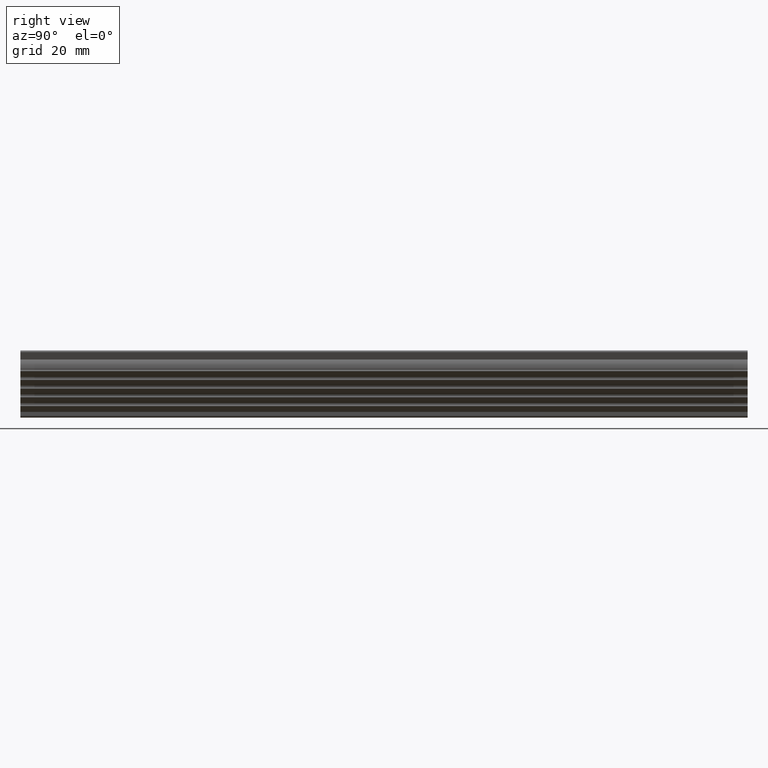
[diagram: clean part render]
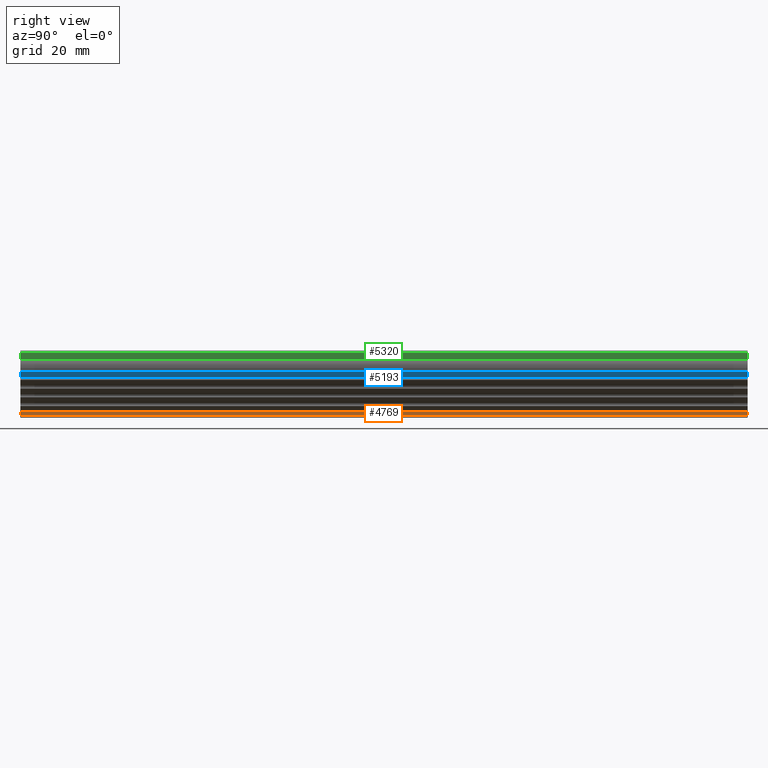
[diagram: same view with three faces highlighted in distinct colors, each labeled with its STEP entity id]
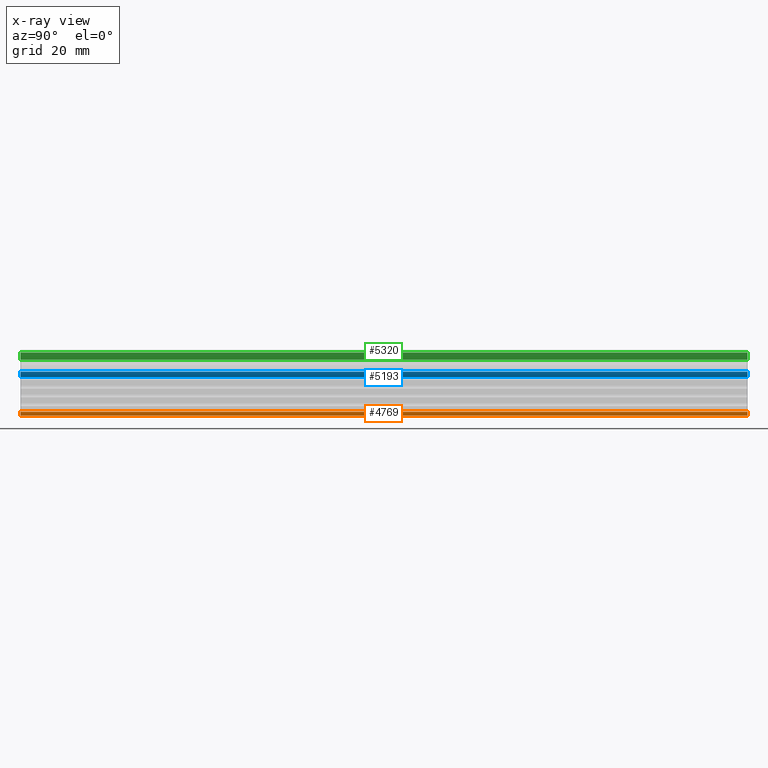
[diagram: x-ray of the same camera — body ghosted, the three highlighted faces saturated]
A machine part, right view with three faces highlighted in distinct colors.
The next image is the same camera in x-ray (body ghosted, the three faces saturated) — at least one of them is partly hidden behind the body in this view.
Their STEP definitions:

[orange] entity #4769 — the highlighted face is a freeform B-spline surface patch.
#68=CARTESIAN_POINT('',(3.749999999995225,0.0,-16.482575694958150));
#69=VERTEX_POINT('',#68);
#85=CARTESIAN_POINT('',(3.749999999995225,0.0,-15.506839763670200));
#86=VERTEX_POINT('',#85);
#87=CARTESIAN_POINT('',(3.749999999995225,0.0,-15.506839763670200));
#88=CARTESIAN_POINT('',(3.749999999995225,0.0,-16.482575694958150));
#89=QUASI_UNIFORM_CURVE('',1,(#87,#88),.UNSPECIFIED.,.F.,.U.);
#90=EDGE_CURVE('',#86,#69,#89,.T.);
#2606=CARTESIAN_POINT('',(3.749999999995225,200.0,-15.506839763670200));
#2607=VERTEX_POINT('',#2606);
#2613=CARTESIAN_POINT('',(3.749999999995225,200.0,-16.482575694958150));
#2614=VERTEX_POINT('',#2613);
#2615=CARTESIAN_POINT('',(3.749999999995225,200.0,-15.506839763670200));
#2616=CARTESIAN_POINT('',(3.749999999995225,200.0,-16.482575694958150));
#2617=QUASI_UNIFORM_CURVE('',1,(#2615,#2616),.UNSPECIFIED.,.F.,.U.);
#2618=EDGE_CURVE('',#2607,#2614,#2617,.T.);
#3846=CARTESIAN_POINT('',(3.749999999995225,200.0,-16.482575694958150));
#3847=CARTESIAN_POINT('',(3.749999999995225,0.0,-16.482575694958150));
#3848=QUASI_UNIFORM_CURVE('',1,(#3846,#3847),.UNSPECIFIED.,.F.,.U.);
#3849=EDGE_CURVE('',#2614,#69,#3848,.T.);
#4754=CARTESIAN_POINT('',(3.749999999995225,-9.989999612361194,-16.531314417276661));
#4755=CARTESIAN_POINT('',(3.749999999995225,-9.989999612361194,-15.458101695633619));
#4756=CARTESIAN_POINT('',(3.749999999995225,209.990004976779200,-16.531314417276661));
#4757=CARTESIAN_POINT('',(3.749999999995225,209.990004976779200,-15.458101695633619));
#4758=B_SPLINE_SURFACE_WITH_KNOTS('',1,1,((#4754,#4756),(#4755,#4757)),.UNSPECIFIED.,.F.,.F.,.U.,(2,2),(2,2),(0.041707724775001,0.958291716431454),(0.0,219.980004589140410),.UNSPECIFIED.);
#4759=ORIENTED_EDGE('',*,*,#90,.T.);
#4760=ORIENTED_EDGE('',*,*,#3849,.F.);
#4761=ORIENTED_EDGE('',*,*,#2618,.F.);
#4762=CARTESIAN_POINT('',(3.749999999995225,200.0,-15.506839763670200));
#4763=CARTESIAN_POINT('',(3.749999999995225,0.0,-15.506839763670200));
#4764=QUASI_UNIFORM_CURVE('',1,(#4762,#4763),.UNSPECIFIED.,.F.,.U.);
#4765=EDGE_CURVE('',#2607,#86,#4764,.T.);
#4766=ORIENTED_EDGE('',*,*,#4765,.T.);
#4767=EDGE_LOOP('',(#4759,#4760,#4761,#4766));
#4768=FACE_OUTER_BOUND('',#4767,.T.);
#4769=ADVANCED_FACE('',(#4768),#4758,.F.);

[blue] entity #5193 — the highlighted face is a freeform B-spline surface patch.
#305=CARTESIAN_POINT('',(3.749999999995225,0.0,-5.906839763668150));
#306=VERTEX_POINT('',#305);
#312=CARTESIAN_POINT('',(5.162132034351139,0.0,-4.494707729318100));
#313=VERTEX_POINT('',#312);
#314=CARTESIAN_POINT('',(5.162132034351139,0.0,-4.494707729318100));
#315=CARTESIAN_POINT('',(3.749999999995225,0.0,-5.906839763668150));
#316=QUASI_UNIFORM_CURVE('',1,(#314,#315),.UNSPECIFIED.,.F.,.U.);
#317=EDGE_CURVE('',#313,#306,#316,.T.);
#2369=CARTESIAN_POINT('',(5.162132034351139,200.0,-4.494707729318100));
#2370=VERTEX_POINT('',#2369);
#2386=CARTESIAN_POINT('',(3.749999999995225,200.0,-5.906839763668150));
#2387=VERTEX_POINT('',#2386);
#2388=CARTESIAN_POINT('',(5.162132034351139,200.0,-4.494707729318100));
#2389=CARTESIAN_POINT('',(3.749999999995225,200.0,-5.906839763668150));
#2390=QUASI_UNIFORM_CURVE('',1,(#2388,#2389),.UNSPECIFIED.,.F.,.U.);
#2391=EDGE_CURVE('',#2370,#2387,#2390,.T.);
#5170=CARTESIAN_POINT('',(3.749999999995225,200.0,-5.906839763668150));
#5171=CARTESIAN_POINT('',(3.749999999995225,0.0,-5.906839763668150));
#5172=QUASI_UNIFORM_CURVE('',1,(#5170,#5171),.UNSPECIFIED.,.F.,.U.);
#5173=EDGE_CURVE('',#2387,#306,#5172,.T.);
#5178=CARTESIAN_POINT('',(3.679463944501535,-9.989999612361183,-5.977375819161544));
#5179=CARTESIAN_POINT('',(5.232668279226528,-9.989999612361183,-4.424171484443078));
#5180=CARTESIAN_POINT('',(3.679463944501535,209.990004976779200,-5.977375819161544));
#5181=CARTESIAN_POINT('',(5.232668279226528,209.990004976779200,-4.424171484443078));
#5182=B_SPLINE_SURFACE_WITH_KNOTS('',1,1,((#5178,#5180),(#5179,#5181)),.UNSPECIFIED.,.F.,.F.,.U.,(2,2),(2,2),(0.0,2.196562635300150),(0.0,219.980004589140410),.UNSPECIFIED.);
#5183=ORIENTED_EDGE('',*,*,#317,.T.);
#5184=ORIENTED_EDGE('',*,*,#5173,.F.);
#5185=ORIENTED_EDGE('',*,*,#2391,.F.);
#5186=CARTESIAN_POINT('',(5.162132034351139,200.0,-4.494707729318100));
#5187=CARTESIAN_POINT('',(5.162132034351139,0.0,-4.494707729318100));
#5188=QUASI_UNIFORM_CURVE('',1,(#5186,#5187),.UNSPECIFIED.,.F.,.U.);
#5189=EDGE_CURVE('',#2370,#313,#5188,.T.);
#5190=ORIENTED_EDGE('',*,*,#5189,.T.);
#5191=EDGE_LOOP('',(#5183,#5184,#5185,#5190));
#5192=FACE_OUTER_BOUND('',#5191,.T.);
#5193=ADVANCED_FACE('',(#5192),#5182,.F.);

[green] entity #5320 — the highlighted face is a freeform B-spline surface patch.
#367=CARTESIAN_POINT('',(2.982511100848340,0.0,-1.079696807726578));
#368=VERTEX_POINT('',#367);
#382=CARTESIAN_POINT('',(3.482962913140195,0.0,0.788014782491890));
#383=VERTEX_POINT('',#382);
#384=CARTESIAN_POINT('',(3.482962913140195,0.0,0.788014782491890));
#385=CARTESIAN_POINT('',(2.982511100848340,0.0,-1.079696807726578));
#386=QUASI_UNIFORM_CURVE('',1,(#384,#385),.UNSPECIFIED.,.F.,.U.);
#387=EDGE_CURVE('',#383,#368,#386,.T.);
#2299=CARTESIAN_POINT('',(3.482962913140195,200.0,0.788014782491890));
#2300=VERTEX_POINT('',#2299);
#2316=CARTESIAN_POINT('',(2.982511100848340,200.0,-1.079696807726578));
#2317=VERTEX_POINT('',#2316);
#2318=CARTESIAN_POINT('',(3.482962913140195,200.0,0.788014782491890));
#2319=CARTESIAN_POINT('',(2.982511100848340,200.0,-1.079696807726578));
#2320=QUASI_UNIFORM_CURVE('',1,(#2318,#2319),.UNSPECIFIED.,.F.,.U.);
#2321=EDGE_CURVE('',#2300,#2317,#2320,.T.);
#5297=CARTESIAN_POINT('',(2.982511100848340,200.0,-1.079696807726578));
#5298=CARTESIAN_POINT('',(2.982511100848340,0.0,-1.079696807726578));
#5299=QUASI_UNIFORM_CURVE('',1,(#5297,#5298),.UNSPECIFIED.,.F.,.U.);
#5300=EDGE_CURVE('',#2317,#368,#5299,.T.);
#5305=CARTESIAN_POINT('',(2.957513540280186,-9.989999612361183,-1.172988973832486));
#5306=CARTESIAN_POINT('',(3.507960455810776,-9.989999612361183,0.881306881803232));
#5307=CARTESIAN_POINT('',(2.957513540280186,209.990004976779200,-1.172988973832486));
#5308=CARTESIAN_POINT('',(3.507960455810776,209.990004976779200,0.881306881803232));
#5309=B_SPLINE_SURFACE_WITH_KNOTS('',1,1,((#5305,#5307),(#5306,#5308)),.UNSPECIFIED.,.F.,.F.,.U.,(2,2),(2,2),(0.0,2.126763566854395),(0.0,219.980004589140410),.UNSPECIFIED.);
#5310=ORIENTED_EDGE('',*,*,#387,.T.);
#5311=ORIENTED_EDGE('',*,*,#5300,.F.);
#5312=ORIENTED_EDGE('',*,*,#2321,.F.);
#5313=CARTESIAN_POINT('',(3.482962913140195,200.0,0.788014782491890));
#5314=CARTESIAN_POINT('',(3.482962913140195,0.0,0.788014782491890));
#5315=QUASI_UNIFORM_CURVE('',1,(#5313,#5314),.UNSPECIFIED.,.F.,.U.);
#5316=EDGE_CURVE('',#2300,#383,#5315,.T.);
#5317=ORIENTED_EDGE('',*,*,#5316,.T.);
#5318=EDGE_LOOP('',(#5310,#5311,#5312,#5317));
#5319=FACE_OUTER_BOUND('',#5318,.T.);
#5320=ADVANCED_FACE('',(#5319),#5309,.F.);